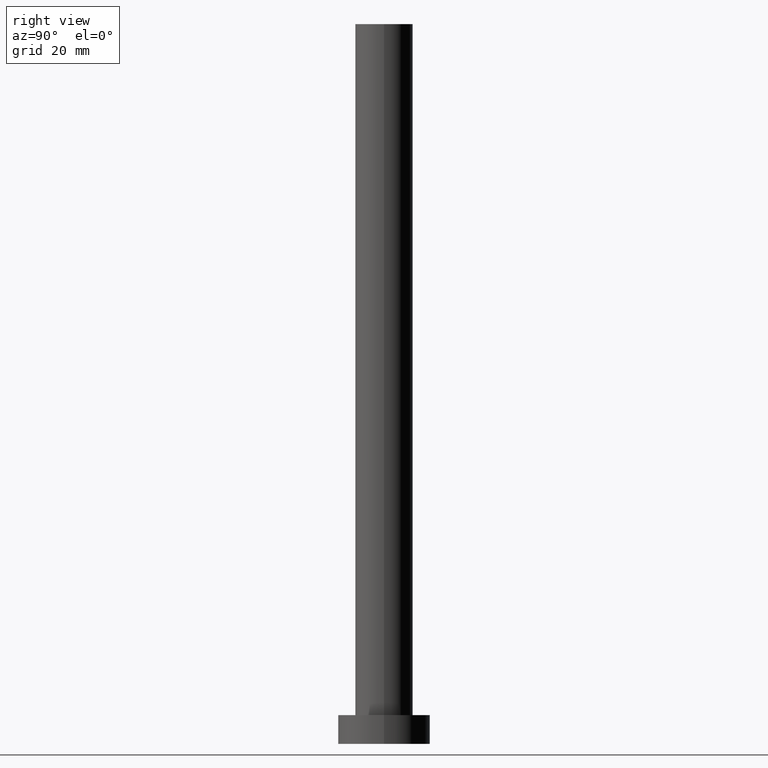
[diagram: clean part render]
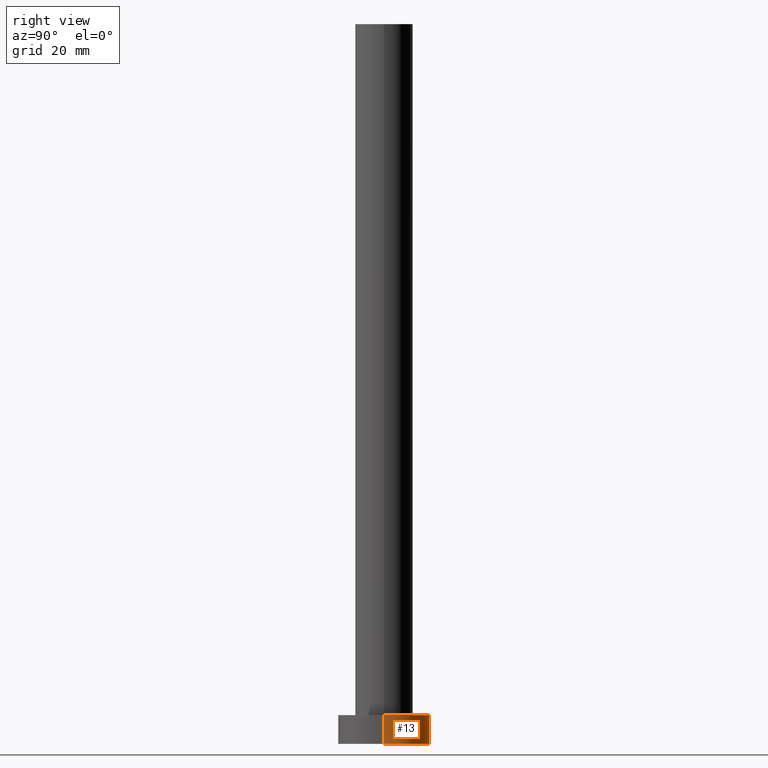
[diagram: same view with one face highlighted and labeled with its STEP entity id]
A machine part, right view. The second image highlights one B-rep face of the part: STEP entity #13.
In plain terms, the highlighted cylindrical surface (partial cylindrical patch) has radius 8 mm, axis along (-0, -0, -1).
Its self-contained STEP definition (entity closure, byte-faithful):
#9 = ORIENTED_EDGE ( 'NONE', *, *, #169, .F. ) ;
#13 = ADVANCED_FACE ( 'NONE', ( #14 ), #231, .T. ) ;
#14 = FACE_OUTER_BOUND ( 'NONE', #239, .T. ) ;
#27 = CARTESIAN_POINT ( 'NONE',  ( 0.000000000000000000, 0.000000000000000000, 5.000000000000000000 ) ) ;
#33 = CARTESIAN_POINT ( 'NONE',  ( -8.000000000000000000, 0.000000000000000000, 0.000000000000000000 ) ) ;
#36 = CARTESIAN_POINT ( 'NONE',  ( -8.000000000000000000, 0.000000000000000000, 5.000000000000000000 ) ) ;
#49 = CARTESIAN_POINT ( 'NONE',  ( 0.000000000000000000, 0.000000000000000000, 5.000000000000000000 ) ) ;
#51 = CARTESIAN_POINT ( 'NONE',  ( 0.000000000000000000, 0.000000000000000000, 0.000000000000000000 ) ) ;
#62 = VERTEX_POINT ( 'NONE', #125 ) ;
#67 = DIRECTION ( 'NONE',  ( -0.000000000000000000, -0.000000000000000000, -1.000000000000000000 ) ) ;
#76 = VERTEX_POINT ( 'NONE', #228 ) ;
#91 = VECTOR ( 'NONE', #236, 1000.000000000000000 ) ;
#92 = EDGE_CURVE ( 'NONE', #201, #76, #124, .T. ) ;
#93 = LINE ( 'NONE', #36, #91 ) ;
#111 = DIRECTION ( 'NONE',  ( 1.000000000000000000, 0.000000000000000000, 0.000000000000000000 ) ) ;
#112 = VECTOR ( 'NONE', #122, 1000.000000000000000 ) ;
#114 = VERTEX_POINT ( 'NONE', #33 ) ;
#122 = DIRECTION ( 'NONE',  ( -0.000000000000000000, -0.000000000000000000, -1.000000000000000000 ) ) ;
#124 = LINE ( 'NONE', #206, #112 ) ;
#125 = CARTESIAN_POINT ( 'NONE',  ( -8.000000000000000000, 0.000000000000000000, 5.000000000000000000 ) ) ;
#134 = AXIS2_PLACEMENT_3D ( 'NONE', #49, #67, #252 ) ;
#137 = ORIENTED_EDGE ( 'NONE', *, *, #92, .T. ) ;
#143 = CIRCLE ( 'NONE', #247, 8.000000000000000000 ) ;
#163 = CIRCLE ( 'NONE', #209, 8.000000000000000000 ) ;
#165 = EDGE_CURVE ( 'NONE', #76, #114, #163, .T. ) ;
#169 = EDGE_CURVE ( 'NONE', #62, #114, #93, .T. ) ;
#181 = DIRECTION ( 'NONE',  ( 0.000000000000000000, 0.000000000000000000, 1.000000000000000000 ) ) ;
#191 = ORIENTED_EDGE ( 'NONE', *, *, #211, .F. ) ;
#196 = ORIENTED_EDGE ( 'NONE', *, *, #165, .T. ) ;
#200 = CARTESIAN_POINT ( 'NONE',  ( 8.000000000000000000, 9.797174393178825657E-16, 5.000000000000000000 ) ) ;
#201 = VERTEX_POINT ( 'NONE', #200 ) ;
#203 = DIRECTION ( 'NONE',  ( 1.000000000000000000, 0.000000000000000000, 0.000000000000000000 ) ) ;
#206 = CARTESIAN_POINT ( 'NONE',  ( 8.000000000000000000, 9.797174393178825657E-16, 5.000000000000000000 ) ) ;
#209 = AXIS2_PLACEMENT_3D ( 'NONE', #51, #212, #111 ) ;
#211 = EDGE_CURVE ( 'NONE', #201, #62, #143, .T. ) ;
#212 = DIRECTION ( 'NONE',  ( 0.000000000000000000, 0.000000000000000000, 1.000000000000000000 ) ) ;
#228 = CARTESIAN_POINT ( 'NONE',  ( 8.000000000000000000, 9.797174393178825657E-16, 0.000000000000000000 ) ) ;
#231 = CYLINDRICAL_SURFACE ( 'NONE', #134, 8.000000000000000000 ) ;
#236 = DIRECTION ( 'NONE',  ( -0.000000000000000000, -0.000000000000000000, -1.000000000000000000 ) ) ;
#239 = EDGE_LOOP ( 'NONE', ( #191, #137, #196, #9 ) ) ;
#247 = AXIS2_PLACEMENT_3D ( 'NONE', #27, #181, #203 ) ;
#252 = DIRECTION ( 'NONE',  ( -1.000000000000000000, 0.000000000000000000, 0.000000000000000000 ) ) ;